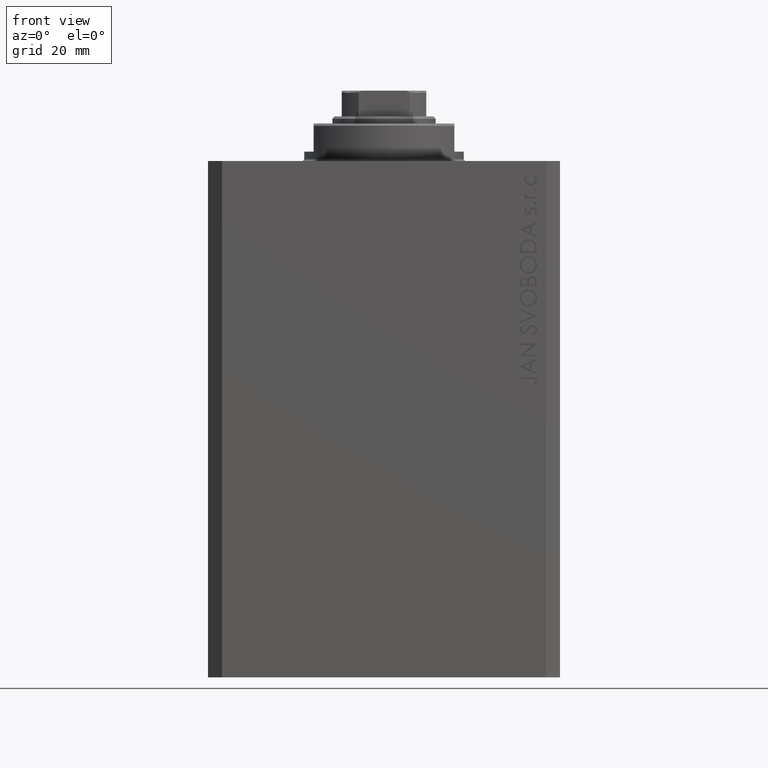
[diagram: clean part render]
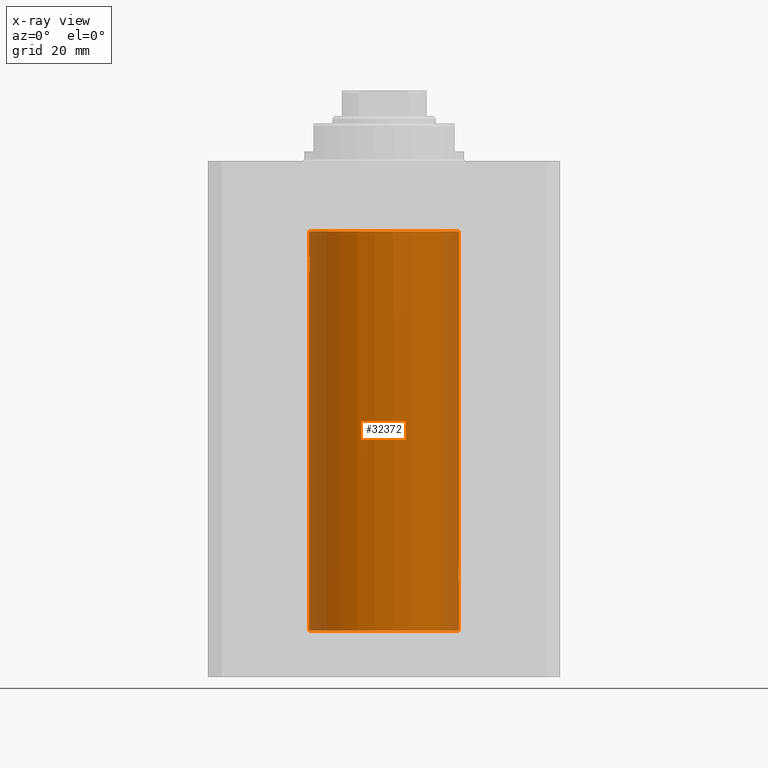
[diagram: x-ray — body ghosted, one internal face saturated and labeled with its STEP entity id]
A machine part, front view, then the same camera in x-ray: the body is ghosted and one INTERNAL B-rep face — a face not visible from any outside direction — is saturated and labeled: STEP entity #32372.
In plain terms, the highlighted cylindrical surface (partial cylindrical patch) has radius 16 mm, axis along (0, 0, 1).
Its self-contained STEP definition (entity closure, byte-faithful):
#453 = VECTOR ( 'NONE', #41842, 1000.000000000000000 ) ;
#540 = CARTESIAN_POINT ( 'NONE',  ( 16.00000000000000000, 0.000000000000000000, -100.0999999999999943 ) ) ;
#1101 = DIRECTION ( 'NONE',  ( -0.000000000000000000, -0.000000000000000000, 1.000000000000000000 ) ) ;
#1958 = CARTESIAN_POINT ( 'NONE',  ( 15.87616187040659810, -1.986993191151173788, -87.73757767630262094 ) ) ;
#2704 = DIRECTION ( 'NONE',  ( 1.000000000000000000, 0.000000000000000000, 0.000000000000000000 ) ) ;
#3180 = CARTESIAN_POINT ( 'NONE',  ( -15.88720136683946826, -1.897207606501643218, -22.64636362870457376 ) ) ;
#4264 = VERTEX_POINT ( 'NONE', #9601 ) ;
#4510 = CARTESIAN_POINT ( 'NONE',  ( -15.87613558886575760, -1.987201773464425836, -21.73917179650635134 ) ) ;
#5563 = CARTESIAN_POINT ( 'NONE',  ( 15.88244988927328727, -1.936089665216105260, -87.48176817359480140 ) ) ;
#5656 = CARTESIAN_POINT ( 'NONE',  ( 15.99312784302578372, -0.5270527724999303221, -89.94678796013921840 ) ) ;
#6015 = CARTESIAN_POINT ( 'NONE',  ( 15.87450786638758338, -1.999999999999695133, -87.86772111890111603 ) ) ;
#6366 = EDGE_LOOP ( 'NONE', ( #43040, #39492, #16272, #35744, #41272, #16540, #23134, #21934, #39783 ) ) ;
#6592 = EDGE_CURVE ( 'NONE', #22625, #28313, #31676, .T. ) ;
#6775 = CARTESIAN_POINT ( 'NONE',  ( -15.87451985347842687, -1.999904855391102299, -22.13366663175617788 ) ) ;
#6821 = DIRECTION ( 'NONE',  ( -0.000000000000000000, -0.000000000000000000, 1.000000000000000000 ) ) ;
#7182 = CARTESIAN_POINT ( 'NONE',  ( -16.00000000000000000, 1.959434851239607631E-15, -23.99999999999999645 ) ) ;
#7432 = CARTESIAN_POINT ( 'NONE',  ( -16.00000000000000000, 8.139613661842072923E-16, -20.00000000000000000 ) ) ;
#7691 = AXIS2_PLACEMENT_3D ( 'NONE', #43082, #33601, #2704 ) ;
#7739 = CARTESIAN_POINT ( 'NONE',  ( 15.88243572217633570, -1.936205349148615529, -88.51778019366463468 ) ) ;
#8022 = EDGE_CURVE ( 'NONE', #4264, #36311, #26909, .T. ) ;
#8643 = EDGE_CURVE ( 'NONE', #40216, #36311, #27624, .T. ) ;
#9395 = CARTESIAN_POINT ( 'NONE',  ( 15.95378323135041043, -1.229270712110467345, -86.40096078818024239 ) ) ;
#9601 = CARTESIAN_POINT ( 'NONE',  ( 15.87450786638774503, -1.999999999999695133, -88.00000000000000000 ) ) ;
#9815 = CARTESIAN_POINT ( 'NONE',  ( 16.00000000000000000, 3.524002214059393877E-15, -90.00000000000000000 ) ) ;
#10046 = CARTESIAN_POINT ( 'NONE',  ( 16.00000000000000000, 0.000000000000000000, -100.0999999999999943 ) ) ;
#10158 = CARTESIAN_POINT ( 'NONE',  ( -15.92097237843274904, -1.589957129871026664, -23.22028033478411047 ) ) ;
#11042 = CARTESIAN_POINT ( 'NONE',  ( -16.00000000000000711, -0.2645044045393378229, -20.00000000000000355 ) ) ;
#11723 = CARTESIAN_POINT ( 'NONE',  ( -15.90565326803670665, -1.736521253711138968, -20.99921634246594948 ) ) ;
#12018 = CIRCLE ( 'NONE', #7691, 16.00000000000000000 ) ;
#12322 = CARTESIAN_POINT ( 'NONE',  ( 15.97014368282246366, -1.006292663714016600, -86.25205598760368275 ) ) ;
#12636 = EDGE_CURVE ( 'NONE', #17221, #28313, #12018, .T. ) ;
#12776 = CARTESIAN_POINT ( 'NONE',  ( 16.00000000000000355, -0.2612440807804993215, -86.00000000000004263 ) ) ;
#13330 = CARTESIAN_POINT ( 'NONE',  ( -15.89889131367402619, -1.796613193944150755, -22.88846140829279463 ) ) ;
#13778 = B_SPLINE_CURVE_WITH_KNOTS ( 'NONE', 3,
 ( #20549, #44243, #34081, #41066, #41512, #27536, #10158, #41286, #13330, #3180, #23930, #37669, #6775, #24363, #4510, #25044, #25279, #21438, #11723, #42639, #21669, #39246, #18276, #31348, #11042, #7432 ),
 .UNSPECIFIED., .F., .F.,
 ( 4, 2, 2, 2, 2, 2, 2, 2, 2, 2, 2, 2, 4 ),
 ( 0.006259031236593881609, 0.007041222816026950632, 0.007823414395460019655, 0.008214510185176554166, 0.008605605974893088678, 0.008996701764609623189, 0.009387797554326157701, 0.009778893344042692212, 0.01016998913375922672, 0.01056108492347576124, 0.01095218071319229575, 0.01173437229262535783, 0.01251656387205841645 ),
 .UNSPECIFIED. ) ;
#14225 = VERTEX_POINT ( 'NONE', #30022 ) ;
#14555 = CARTESIAN_POINT ( 'NONE',  ( -16.00000000000000000, 8.139613661842072923E-16, -20.00000000000000000 ) ) ;
#14582 = DIRECTION ( 'NONE',  ( -0.000000000000000000, -0.000000000000000000, 1.000000000000000000 ) ) ;
#15516 = CARTESIAN_POINT ( 'NONE',  ( 16.00000000000000000, 0.000000000000000000, -100.0999999999999943 ) ) ;
#15708 = CARTESIAN_POINT ( 'NONE',  ( 15.92092149944864410, -1.590465714389863949, -86.78037678790906284 ) ) ;
#15715 = DIRECTION ( 'NONE',  ( 1.000000000000000000, 0.000000000000000000, 0.000000000000000000 ) ) ;
#16166 = CARTESIAN_POINT ( 'NONE',  ( 16.00000000000000000, -2.738688404655786685E-23, -86.00000000000000000 ) ) ;
#16272 = ORIENTED_EDGE ( 'NONE', *, *, #26219, .T. ) ;
#16540 = ORIENTED_EDGE ( 'NONE', *, *, #6592, .F. ) ;
#16629 = CARTESIAN_POINT ( 'NONE',  ( 16.00000000000000000, -2.738688404655786685E-23, -86.00000000000000000 ) ) ;
#17221 = VERTEX_POINT ( 'NONE', #35412 ) ;
#17464 = DIRECTION ( 'NONE',  ( -0.000000000000000000, -0.000000000000000000, 1.000000000000000000 ) ) ;
#18276 = CARTESIAN_POINT ( 'NONE',  ( -15.97001510549667458, -1.008257970366809309, -20.25321871145306218 ) ) ;
#18473 = CARTESIAN_POINT ( 'NONE',  ( -16.00000000000000000, 1.959434878635765131E-15, -100.0999999999999943 ) ) ;
#18507 = VERTEX_POINT ( 'NONE', #14555 ) ;
#18977 = CARTESIAN_POINT ( 'NONE',  ( 15.87450786638774503, -1.999999999999695133, -88.00000000000000000 ) ) ;
#19398 = EDGE_CURVE ( 'NONE', #18507, #17221, #35380, .T. ) ;
#19424 = CARTESIAN_POINT ( 'NONE',  ( 15.88713982474484254, -1.897718960373744324, -88.64483805877635803 ) ) ;
#19649 = CARTESIAN_POINT ( 'NONE',  ( 15.87615728668762394, -1.987029298095570828, -88.26211076195546923 ) ) ;
#19782 = CARTESIAN_POINT ( 'NONE',  ( 15.87450786638774503, -1.999999999999695133, -88.00000000000000000 ) ) ;
#20111 = VECTOR ( 'NONE', #1101, 1000.000000000000000 ) ;
#20549 = CARTESIAN_POINT ( 'NONE',  ( -16.00000000000000000, 1.959434851239607631E-15, -23.99999999999999645 ) ) ;
#21438 = CARTESIAN_POINT ( 'NONE',  ( -15.89874935709249826, -1.797863738508693299, -21.11407850031504196 ) ) ;
#21669 = CARTESIAN_POINT ( 'NONE',  ( -15.92911555180481820, -1.507256214862781496, -20.67895665196595445 ) ) ;
#21934 = ORIENTED_EDGE ( 'NONE', *, *, #8022, .T. ) ;
#22360 = CARTESIAN_POINT ( 'NONE',  ( 15.87450786638757982, -1.999999999999695133, -88.13215961561486722 ) ) ;
#22586 = CARTESIAN_POINT ( 'NONE',  ( 15.95367853504516020, -1.230571937713644592, -89.59797881284819709 ) ) ;
#22625 = VERTEX_POINT ( 'NONE', #16629 ) ;
#23134 = ORIENTED_EDGE ( 'NONE', *, *, #24801, .T. ) ;
#23165 = CARTESIAN_POINT ( 'NONE',  ( 15.92923429551377623, -1.506011695761385827, -86.67752618423779154 ) ) ;
#23930 = CARTESIAN_POINT ( 'NONE',  ( -15.88248768234623576, -1.935780515549986536, -22.51937114547926910 ) ) ;
#24363 = CARTESIAN_POINT ( 'NONE',  ( -15.87449600834271379, -2.000094120337571280, -21.86919591423420783 ) ) ;
#24801 = EDGE_CURVE ( 'NONE', #22625, #4264, #31603, .T. ) ;
#25044 = CARTESIAN_POINT ( 'NONE',  ( -15.88239801746205515, -1.936513707523806360, -21.48335998918948775 ) ) ;
#25279 = CARTESIAN_POINT ( 'NONE',  ( -15.88709570026284545, -1.898087287925293687, -21.35623329282659455 ) ) ;
#25668 = EDGE_CURVE ( 'NONE', #14225, #40216, #27378, .T. ) ;
#25968 = CARTESIAN_POINT ( 'NONE',  ( 16.00000000000000711, -0.2643851093299312560, -89.99999999999998579 ) ) ;
#26192 = CARTESIAN_POINT ( 'NONE',  ( 15.97003999263321283, -1.007841982684946291, -89.74700387082582154 ) ) ;
#26211 = AXIS2_PLACEMENT_3D ( 'NONE', #30744, #6821, #26936 ) ;
#26219 = EDGE_CURVE ( 'NONE', #30884, #18507, #13778, .T. ) ;
#26548 = CARTESIAN_POINT ( 'NONE',  ( 15.99321095263419501, -0.5247071560218703468, -86.05253611177603545 ) ) ;
#26909 = B_SPLINE_CURVE_WITH_KNOTS ( 'NONE', 3,
 ( #18977, #22360, #19649, #7739, #19424, #43775, #40172, #43550, #42883, #22586, #26192, #5656, #25968, #29798 ),
 .UNSPECIFIED., .F., .F.,
 ( 4, 2, 2, 2, 2, 2, 4 ),
 ( 0.009389208671973559711, 0.009780128071984169405, 0.01017104747199477910, 0.01056196687200538879, 0.01095288627201599849, 0.01173472507203721961, 0.01251656387205843900 ),
 .UNSPECIFIED. ) ;
#26936 = DIRECTION ( 'NONE',  ( 1.000000000000000000, 0.000000000000000000, 0.000000000000000000 ) ) ;
#27378 = CIRCLE ( 'NONE', #28077, 16.00000000000000000 ) ;
#27536 = CARTESIAN_POINT ( 'NONE',  ( -15.92928245046054769, -1.505501573616968347, -23.32304844713207359 ) ) ;
#27624 = LINE ( 'NONE', #540, #39297 ) ;
#28077 = AXIS2_PLACEMENT_3D ( 'NONE', #36905, #44127, #15715 ) ;
#28313 = VERTEX_POINT ( 'NONE', #28640 ) ;
#28640 = CARTESIAN_POINT ( 'NONE',  ( 16.00000000000000000, 0.000000000000000000, -15.00000000000000000 ) ) ;
#29798 = CARTESIAN_POINT ( 'NONE',  ( 16.00000000000000000, 3.524002214059393877E-15, -90.00000000000000000 ) ) ;
#30022 = CARTESIAN_POINT ( 'NONE',  ( -16.00000000000000000, 1.959434878635765131E-15, -100.0999999999999943 ) ) ;
#30367 = CARTESIAN_POINT ( 'NONE',  ( 15.88715711325523472, -1.897577117346632258, -87.35470827059133114 ) ) ;
#30744 = CARTESIAN_POINT ( 'NONE',  ( 0.000000000000000000, 0.000000000000000000, -100.0999999999999943 ) ) ;
#30884 = VERTEX_POINT ( 'NONE', #7182 ) ;
#31348 = CARTESIAN_POINT ( 'NONE',  ( -15.99312147175147381, -0.5272875822566800430, -20.05325995304360376 ) ) ;
#31603 = B_SPLINE_CURVE_WITH_KNOTS ( 'NONE', 3,
 ( #16166, #12776, #26548, #12322, #9395, #23165, #15708, #36902, #32857, #30367, #5563, #1958, #6015, #19782 ),
 .UNSPECIFIED., .F., .F.,
 ( 4, 2, 2, 2, 2, 2, 4 ),
 ( 0.006259031236594497435, 0.007041575595439277316, 0.007824119954284057196, 0.008215392133706433259, 0.008606664313128807586, 0.008997936492551183649, 0.009389208671973559711 ),
 .UNSPECIFIED. ) ;
#31676 = LINE ( 'NONE', #10046, #453 ) ;
#31961 = CARTESIAN_POINT ( 'NONE',  ( -16.00000000000000000, 1.959434878635765131E-15, -100.0999999999999943 ) ) ;
#32372 = ADVANCED_FACE ( 'NONE', ( #44498 ), #37280, .F. ) ;
#32857 = CARTESIAN_POINT ( 'NONE',  ( 15.89884071244566854, -1.797059837015411610, -87.11243238313522852 ) ) ;
#33601 = DIRECTION ( 'NONE',  ( 0.000000000000000000, 0.000000000000000000, 1.000000000000000000 ) ) ;
#34081 = CARTESIAN_POINT ( 'NONE',  ( -15.99321727742820620, -0.5244724041436311657, -23.94751141031268560 ) ) ;
#34442 = LINE ( 'NONE', #31961, #36773 ) ;
#35380 = LINE ( 'NONE', #18473, #20111 ) ;
#35412 = CARTESIAN_POINT ( 'NONE',  ( -16.00000000000000000, 1.959434878635765131E-15, -15.00000000000000000 ) ) ;
#35744 = ORIENTED_EDGE ( 'NONE', *, *, #19398, .T. ) ;
#36311 = VERTEX_POINT ( 'NONE', #9815 ) ;
#36773 = VECTOR ( 'NONE', #14582, 1000.000000000000000 ) ;
#36902 = CARTESIAN_POINT ( 'NONE',  ( 15.90575552528889247, -1.735587436575120934, -86.99760376191683520 ) ) ;
#36905 = CARTESIAN_POINT ( 'NONE',  ( 0.000000000000000000, 0.000000000000000000, -100.0999999999999943 ) ) ;
#37280 = CYLINDRICAL_SURFACE ( 'NONE', #26211, 16.00000000000000000 ) ;
#37669 = CARTESIAN_POINT ( 'NONE',  ( -15.87618369521984185, -1.986819684797414887, -22.26370462878176326 ) ) ;
#39246 = CARTESIAN_POINT ( 'NONE',  ( -15.95364199493483426, -1.231048876942798298, -20.40236864042801912 ) ) ;
#39297 = VECTOR ( 'NONE', #17464, 1000.000000000000000 ) ;
#39492 = ORIENTED_EDGE ( 'NONE', *, *, #42528, .T. ) ;
#39783 = ORIENTED_EDGE ( 'NONE', *, *, #8643, .F. ) ;
#40172 = CARTESIAN_POINT ( 'NONE',  ( 15.90570493127647289, -1.736048731325449790, -89.00159606390616318 ) ) ;
#40216 = VERTEX_POINT ( 'NONE', #15516 ) ;
#41066 = CARTESIAN_POINT ( 'NONE',  ( -15.97016854943970543, -1.005876079953899715, -23.74816627006212144 ) ) ;
#41272 = ORIENTED_EDGE ( 'NONE', *, *, #12636, .T. ) ;
#41286 = CARTESIAN_POINT ( 'NONE',  ( -15.90580722143557502, -1.735114343256360270, -23.00320784791317408 ) ) ;
#41512 = CARTESIAN_POINT ( 'NONE',  ( -15.95381972293796835, -1.228793614424116054, -23.59938581325380014 ) ) ;
#41842 = DIRECTION ( 'NONE',  ( -0.000000000000000000, -0.000000000000000000, 1.000000000000000000 ) ) ;
#42528 = EDGE_CURVE ( 'NONE', #14225, #30884, #34442, .T. ) ;
#42639 = CARTESIAN_POINT ( 'NONE',  ( -15.92081325887754950, -1.591545514129665495, -20.78178127159715061 ) ) ;
#42883 = CARTESIAN_POINT ( 'NONE',  ( 15.92916365170397874, -1.506747118993470913, -89.32161795328836718 ) ) ;
#43040 = ORIENTED_EDGE ( 'NONE', *, *, #25668, .F. ) ;
#43082 = CARTESIAN_POINT ( 'NONE',  ( 0.000000000000000000, 0.000000000000000000, -15.00000000000000000 ) ) ;
#43550 = CARTESIAN_POINT ( 'NONE',  ( 15.92086417679749744, -1.591036901625990430, -89.21887712688091199 ) ) ;
#43775 = CARTESIAN_POINT ( 'NONE',  ( 15.89879988731505911, -1.797417927657978476, -88.88681574633190507 ) ) ;
#44127 = DIRECTION ( 'NONE',  ( 0.000000000000000000, 0.000000000000000000, 1.000000000000000000 ) ) ;
#44243 = CARTESIAN_POINT ( 'NONE',  ( -16.00000000000000355, -0.2611263091397176828, -24.00000000000000711 ) ) ;
#44498 = FACE_OUTER_BOUND ( 'NONE', #6366, .T. ) ;